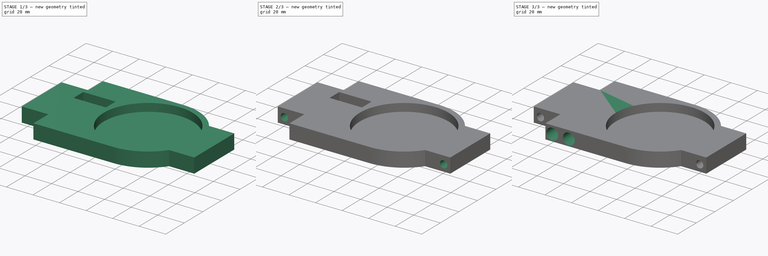
[diagram: build sequence overview — one tinted view per stage of 3, left to right]
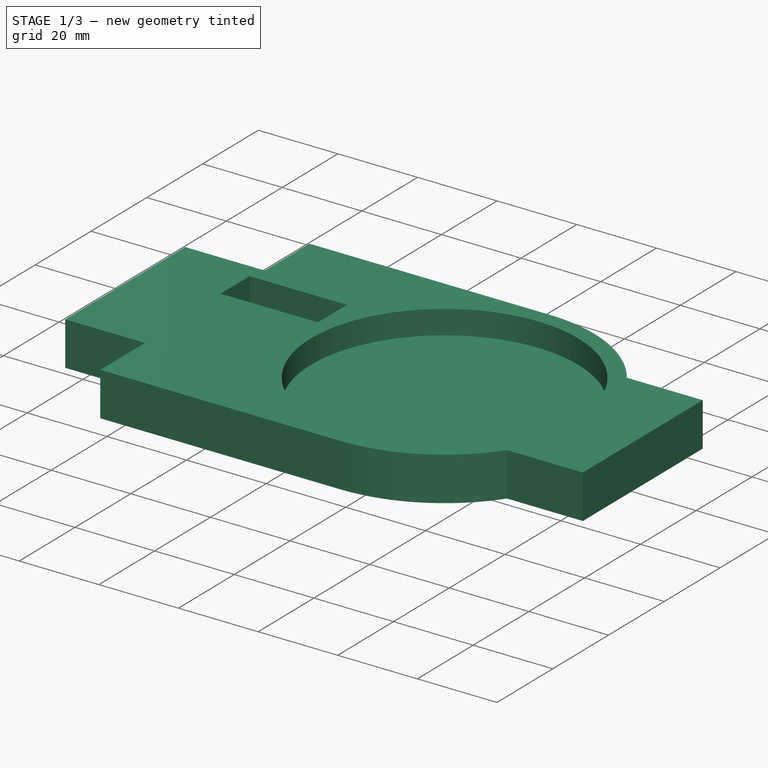
[diagram: stage 1 of 3 — iso view after this stage's code; geometry added in this stage tinted green]
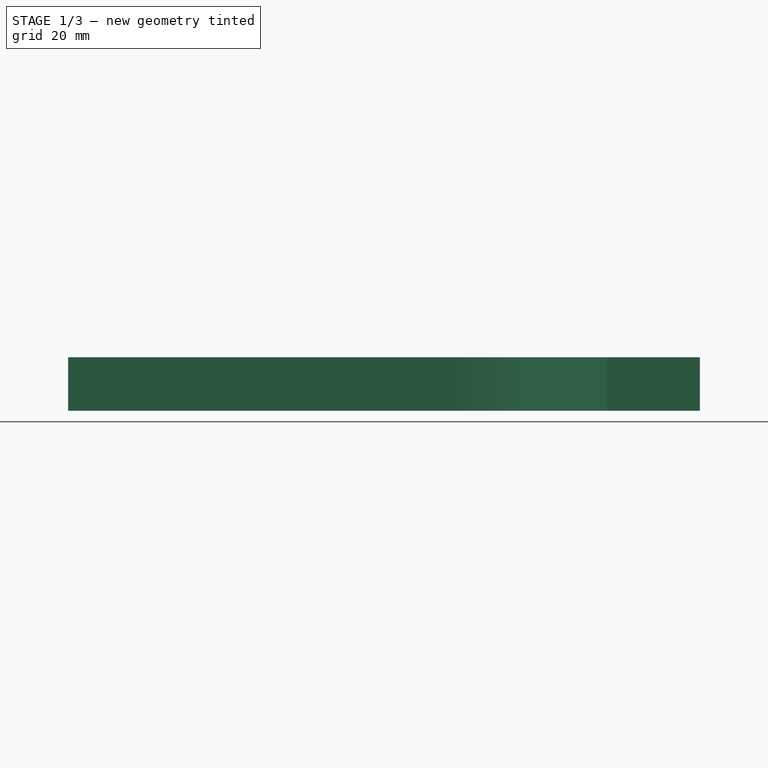
[diagram: stage 1 of 3 — front view after this stage's code; geometry added in this stage tinted green]
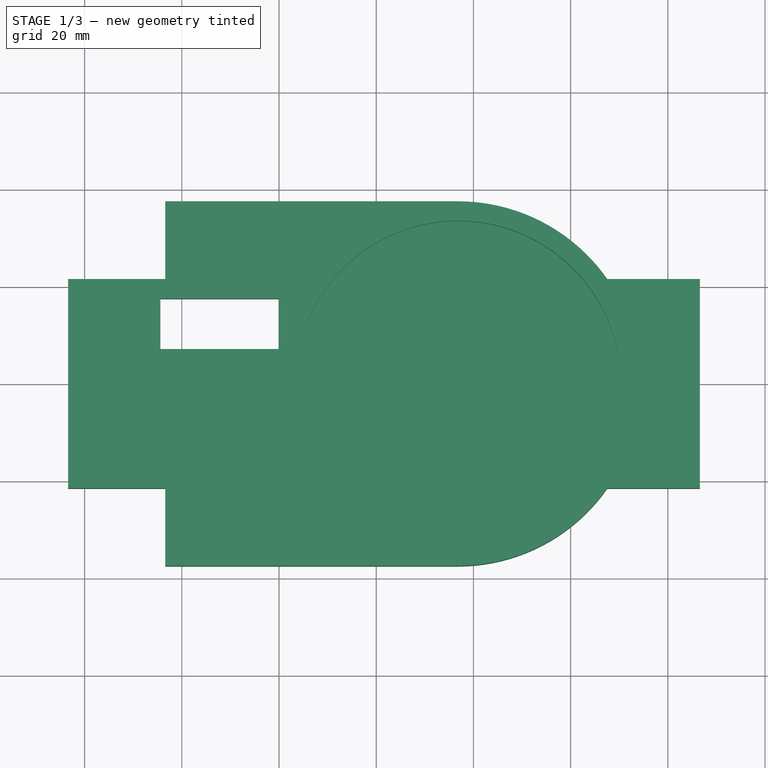
[diagram: stage 1 of 3 — top view after this stage's code; geometry added in this stage tinted green]
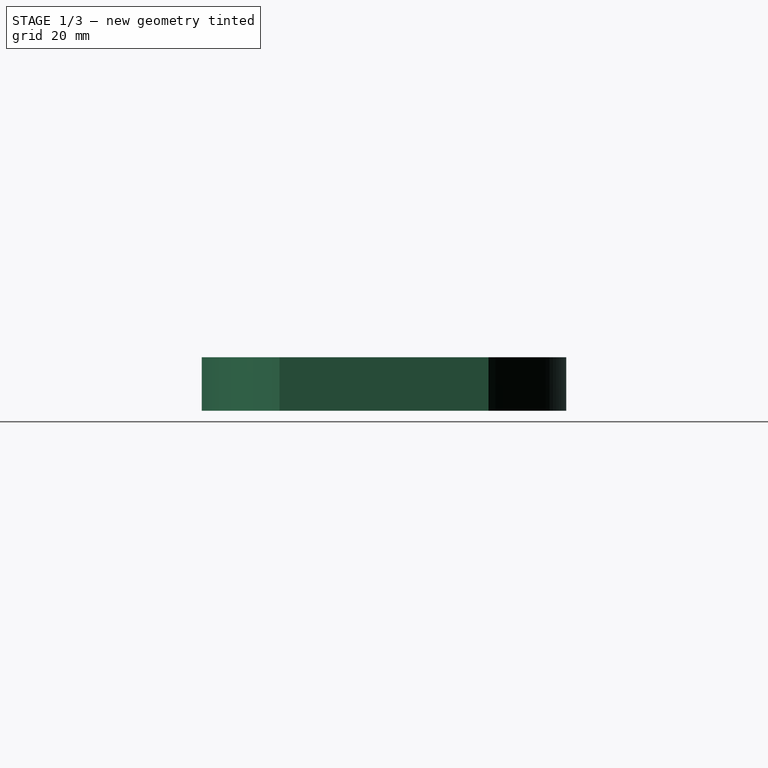
[diagram: stage 1 of 3 — right view after this stage's code; geometry added in this stage tinted green]
FCSTD DOCUMENT  (FreeCAD 1.0R39109 (Git))
Label: Y gantry
License: All rights reserved
LicenseURL: http://en.wikipedia.org/wiki/All_rights_reserved
objects: Sketcher::SketchObject×5, PartDesign::Pad×2, PartDesign::Hole×2, PartDesign::Pocket×1, Spreadsheet::Sheet×1, PartDesign::Body×1
note: 26 computed .brp shape members not serialized (recipe doc carries the construction recipe); baked Part::Feature solids carry a one-line shape summary decoded from their .brp

FEATURE [Sketcher::SketchObject] Sketch
  ArcFitTolerance = 0
  AttachmentSupport = -> [XY_Plane]
  FullyConstrained = false
  MakeInternals = false
  MapMode = 5
  expr: Constraints[36] = 24 + 0.4
  expr: Constraints[37] = 10 + 0.4
  sketch-geometry (22):
    g0: LineSegment StartX=-43.4 StartY=21.5 StartZ=0 EndX=-23.4 EndY=21.5 EndZ=0
    g1: LineSegment StartX=86.6 StartY=21.5 StartZ=0 EndX=86.6 EndY=-21.5 EndZ=0
    g2: LineSegment StartX=86.6 StartY=-21.5 StartZ=0 EndX=67.5463 EndY=-21.5 EndZ=0
    g3: LineSegment StartX=-43.4 StartY=-21.5 StartZ=0 EndX=-43.4 EndY=21.5 EndZ=0
    g4: LineSegment StartX=-23.4 StartY=37.5 StartZ=0 EndX=36.8217 EndY=37.5 EndZ=0
    g5: LineSegment StartX=36.8217 StartY=-37.5 StartZ=0 EndX=-23.4 EndY=-37.5 EndZ=0
    g6: LineSegment StartX=67.5463 StartY=21.5 StartZ=0 EndX=86.6 EndY=21.5 EndZ=0
    g7: LineSegment StartX=-23.4 StartY=-21.5 StartZ=0 EndX=-43.4 EndY=-21.5 EndZ=0
    g8: Circle [constr] CenterX=36.8217 CenterY=0 CenterZ=0 NormalX=0 NormalY=0 NormalZ=1 AngleXU=0 Radius=33.5
    g9: Circle [constr] CenterX=36.8217 CenterY=0 CenterZ=0 NormalX=0 NormalY=0 NormalZ=1 AngleXU=0 Radius=37.5
    g10: Circle [constr] CenterX=36.8217 CenterY=0 CenterZ=0 NormalX=0 NormalY=0 NormalZ=1 AngleXU=0 Radius=45
    g11: LineSegment [constr] StartX=-8.17827 StartY=37.5 StartZ=0 EndX=-8.17827 EndY=-37.5 EndZ=0
    g12: LineSegment [constr] StartX=187.295 StartY=-26.5 StartZ=0 EndX=187.295 EndY=-37.5 EndZ=0
    g13: LineSegment [constr] StartX=187.295 StartY=37.5 StartZ=0 EndX=187.295 EndY=26.5 EndZ=0
    g14: LineSegment StartX=-24.4 StartY=17.5 StartZ=0 EndX=0 EndY=17.5 EndZ=0
    g15: LineSegment StartX=0 StartY=17.5 StartZ=0 EndX=0 EndY=7.1 EndZ=0
    g16: LineSegment StartX=0 StartY=7.1 StartZ=0 EndX=-24.4 EndY=7.1 EndZ=0
    g17: LineSegment StartX=-24.4 StartY=7.1 StartZ=0 EndX=-24.4 EndY=17.5 EndZ=0
    g18: LineSegment StartX=-23.4 StartY=-37.5 StartZ=0 EndX=-23.4 EndY=-21.5 EndZ=0
    g19: ArcOfCircle CenterX=36.8217 CenterY=4e-15 CenterZ=0 NormalX=0 NormalY=0 NormalZ=1 AngleXU=0 Radius=37.5 StartAngle=0.610568 EndAngle=1.5708
    g20: ArcOfCircle CenterX=36.8217 CenterY=-6.2374e-12 CenterZ=0 NormalX=0 NormalY=0 NormalZ=1 AngleXU=0 Radius=37.5 StartAngle=4.71239 EndAngle=5.67262
    g21: LineSegment StartX=-23.4 StartY=21.5 StartZ=0 EndX=-23.4 EndY=37.5 EndZ=0
  constraints (62):
    c: Coincident(g6,g1)
    c: Coincident(g1,g2)
    c: Coincident(g7,g3)
    c: Coincident(g3,g0)
    c: Horizontal(g0)
    c: Horizontal(g2)
    c: Vertical(g1)
    c: Vertical(g3)
    c: Horizontal(g4)
    c: Horizontal(g5)
    c: Tangent(g0,g6)
    c: Tangent(g2,g7)
    c: DistanceY(g5,g4) = 75
    c: DistanceY(g1,g1) = 43
    c: Coincident(g9,g8)
    c: Tangent(g9,g4)
    c: Tangent(g9,g5)
    c: Diameter(g8) = 67
    c: PointOnObject(g6,g9)
    c: Coincident(g10,g8)
    c: Diameter(g10) = 90
    c: Horizontal(g8,g-1)
    c: PointOnObject(g11,g4)
    c: PointOnObject(g11,g5)
    c: Vertical(g11)
    c: Tangent(g11,g10)
    c: Vertical(g12)
    c: Vertical(g13)
    c: Vertical(g13,g12)
    c: Horizontal(g14)
    c: Coincident(g14,g15)
    c: Vertical(g15)
    c: Coincident(g15,g16)
    c: Horizontal(g16)
    c: Coincident(g16,g17)
    c: Vertical(g17)
    c: DistanceX(g16,g16) = 24.4
    c: DistanceY(g15,g15) = 10.4
    c: Coincident(g18,g5)
    c: Coincident(g18,g7)
    c: Vertical(g18)
    c: DistanceX(g-1,g8) = 36.8217  'glassoffset'
    c: DistanceX(g0,g1) = 130  'length'
    c: Equal(g4,g5)
    c: Coincident(g19,g6)
    c: Tangent(g19,g4) = 1.5708
    c: Symmetric(g6,g2,g-1)
    c: Coincident(g20,g2)
    c: Tangent(g20,g5) = 1.5708
    c: Equal(g19,g9)
    c: PointOnObject(g15,g9)
    c: DistanceX(g15,g-1) = 0  'mouning'
    c: Coincident(g21,g0)
    c: Coincident(g21,g4)
    c: Vertical(g21)
    c: PointOnObject(g-1,g15)
    c: Coincident(g14,g17)
    c: Vertical(g0,g7)
    c: Distance(g14,g21) = 1
    c: DistanceY(g14,g11) = 20
    c: DistanceX(g0,g4) = 20
    c: DistanceX(g0,g-1) = 43.4  'lengthA'
FEATURE [PartDesign::Pad] Pad  label="Pad base"
  Direction = (0,0,1)
  Length = 10
  Length2 = 1
  Profile = -> Sketch
  ReferenceAxis = -> Sketch [N_Axis]
  Reversed = true
  Suppressed = false
  Type = 4
FEATURE [Sketcher::SketchObject] Sketch001
  ArcFitTolerance = 0
  AttachmentSupport = -> [XY_Plane]
  FullyConstrained = true
  MakeInternals = false
  MapMode = 5
  expr: Constraints[4] = Sketch.Constraints.glassoffset
  sketch-geometry (2):
    g0: Circle [constr] CenterX=36.8217 CenterY=0 CenterZ=0 NormalX=0 NormalY=0 NormalZ=1 AngleXU=0 Radius=17.5
    g1: Circle CenterX=36.8217 CenterY=0 CenterZ=0 NormalX=0 NormalY=0 NormalZ=1 AngleXU=0 Radius=33.5
  constraints (5):
    c: PointOnObject(g0,g-1)
    c: Coincident(g1,g0)
    c: Diameter(g1) = 67
    c: Tangent(g0,g-3)
    c: DistanceX(g-1,g0) = 36.8217
FEATURE [PartDesign::Pocket] Pocket  label="Pocket glass"
  BaseFeature = -> Pad
  Direction = (0,0,-1)
  Length = 5
  Length2 = 100
  Profile = -> Sketch001
  ReferenceAxis = -> Sketch001 [N_Axis]
  Suppressed = false
  Type = 4
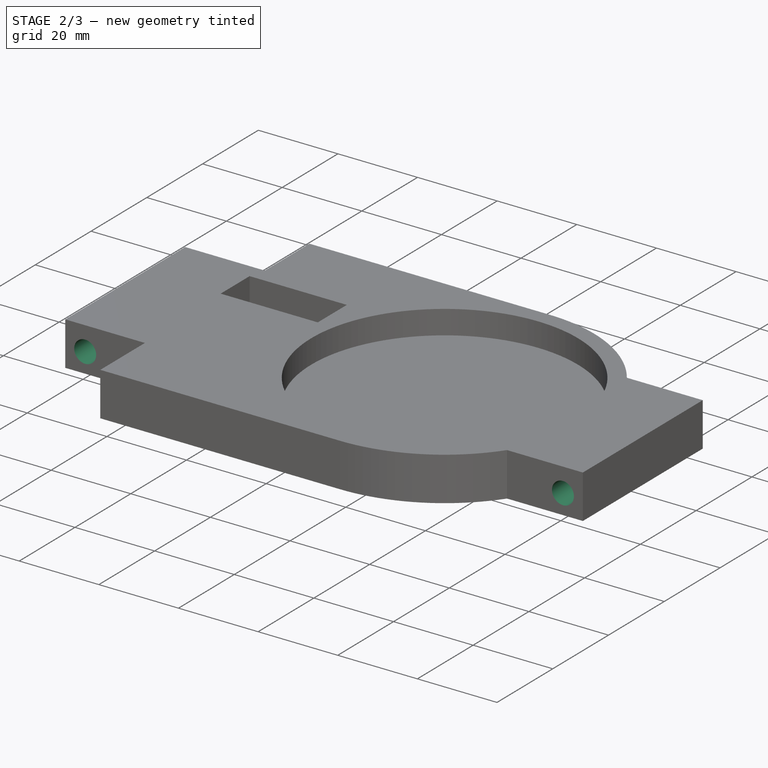
[diagram: stage 2 of 3 — iso view after this stage's code; geometry added in this stage tinted green]
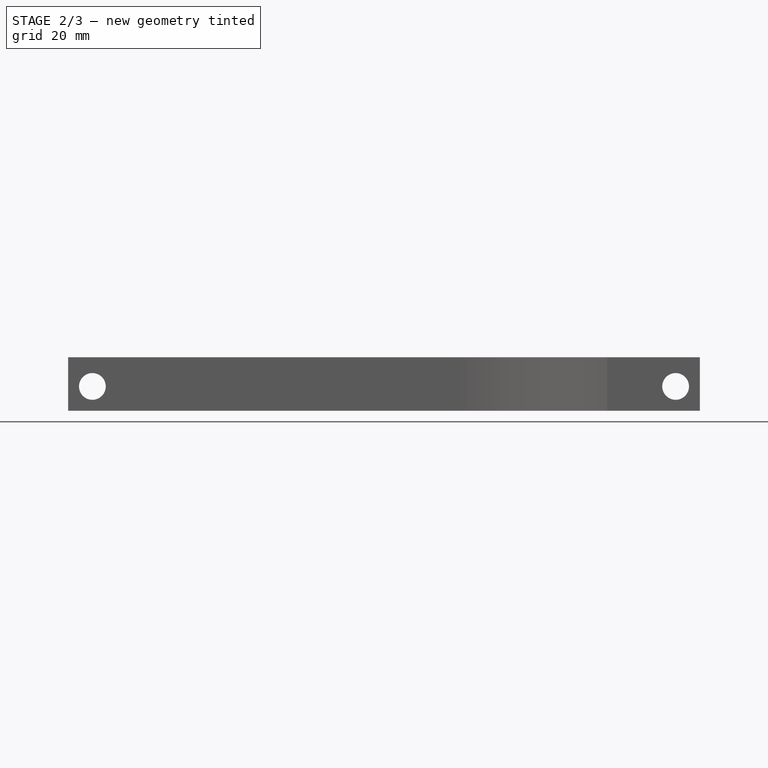
[diagram: stage 2 of 3 — front view after this stage's code; geometry added in this stage tinted green]
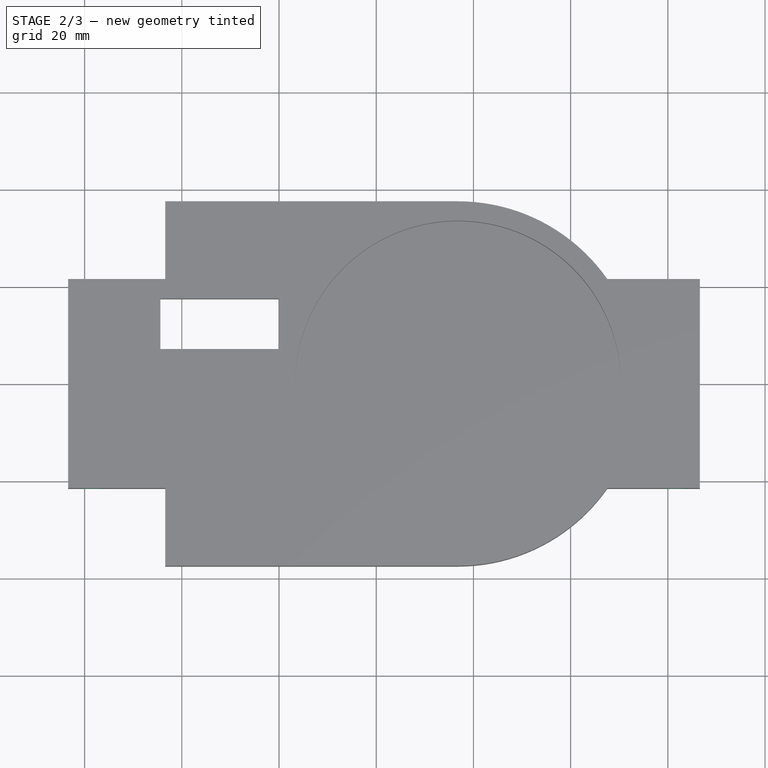
[diagram: stage 2 of 3 — top view after this stage's code; geometry added in this stage tinted green]
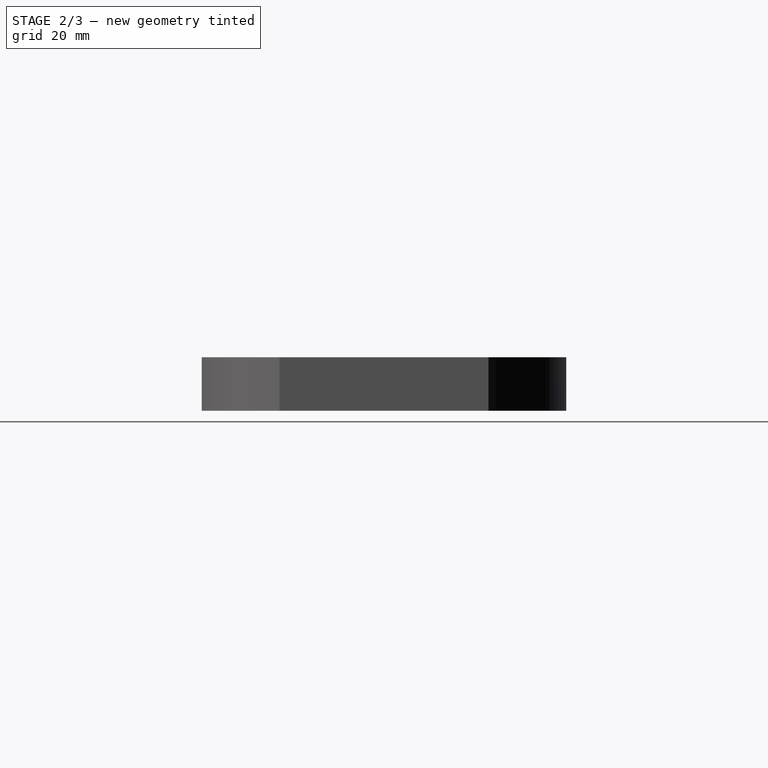
[diagram: stage 2 of 3 — right view after this stage's code; geometry added in this stage tinted green]
FEATURE [Sketcher::SketchObject] Sketch002
  ArcFitTolerance = 0
  AttachmentOffset = pos=(0,0,35) rot=(0,0,1;0rad)
  AttachmentSupport = -> [XZ_Plane]
  FullyConstrained = false
  MakeInternals = false
  MapMode = 5
  Placement = pos=(0,-35,7.8e-15) rot=(1,0,0;1.5708rad)
  expr: Constraints[10] = Sketch.Constraints.length
  expr: Constraints[9] = Sketch.Constraints.lengthA
  sketch-geometry (5):
    g0: Circle CenterX=-38.4 CenterY=-5 CenterZ=0 NormalX=0 NormalY=0 NormalZ=1 AngleXU=0 Radius=2.75
    g1: Circle CenterX=81.6 CenterY=-5 CenterZ=0 NormalX=0 NormalY=0 NormalZ=1 AngleXU=0 Radius=2.75
    g2: LineSegment [constr] StartX=-38.4 StartY=-5 StartZ=0 EndX=81.6 EndY=-5 EndZ=0
    g3: LineSegment [constr] StartX=-43.4 StartY=0 StartZ=0 EndX=-43.4 EndY=-28.6768 EndZ=0
    g4: LineSegment [constr] StartX=86.6 StartY=0 StartZ=0 EndX=86.6 EndY=-29.697 EndZ=0
  constraints (13):
    c: Coincident(g2,g0)
    c: Coincident(g2,g1)
    c: Horizontal(g2)
    c: DistanceY(g0,g-1) = 5
    c: Equal(g0,g1)
    c: PointOnObject(g3,g-1)
    c: Vertical(g3)
    c: PointOnObject(g4,g-1)
    c: Vertical(g4)
    c: DistanceX(g3,g-1) = 43.4
    c: Distance(g3,g4) = 130
    c: Distance(g0,g3) = 5
    c: DistanceX(g1,g4) = 5
FEATURE [PartDesign::Hole] Hole  label="Hole wheels"
  BaseFeature = -> Pocket
  CustomThreadClearance = 0
  Depth = 25
  DepthType = 1
  Diameter = 5.5
  DrillForDepth = false
  DrillPoint = 1
  DrillPointAngle = 118
  HoleCutCountersinkAngle = 90
  HoleCutCustomValues = false
  HoleCutDepth = 0
  HoleCutDiameter = 6.1
  HoleCutType = 0
  ModelThread = false
  Profile = -> Sketch002
  Suppressed = false
  Tapered = false
  TaperedAngle = 90
  ThreadClass = 0
  ThreadDepth = 23.5
  ThreadDepthType = 0
  ThreadDirection = 0
  ThreadFit = 0
  ThreadSize = 0
  ThreadType = 0
  Threaded = false
  UseCustomThreadClearance = false
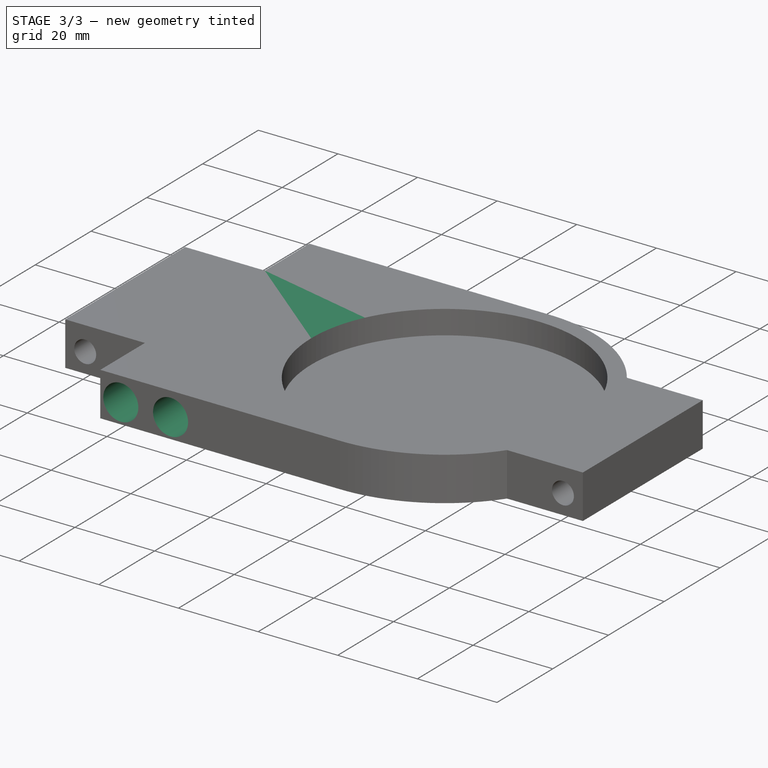
[diagram: stage 3 of 3 — iso view after this stage's code; geometry added in this stage tinted green]
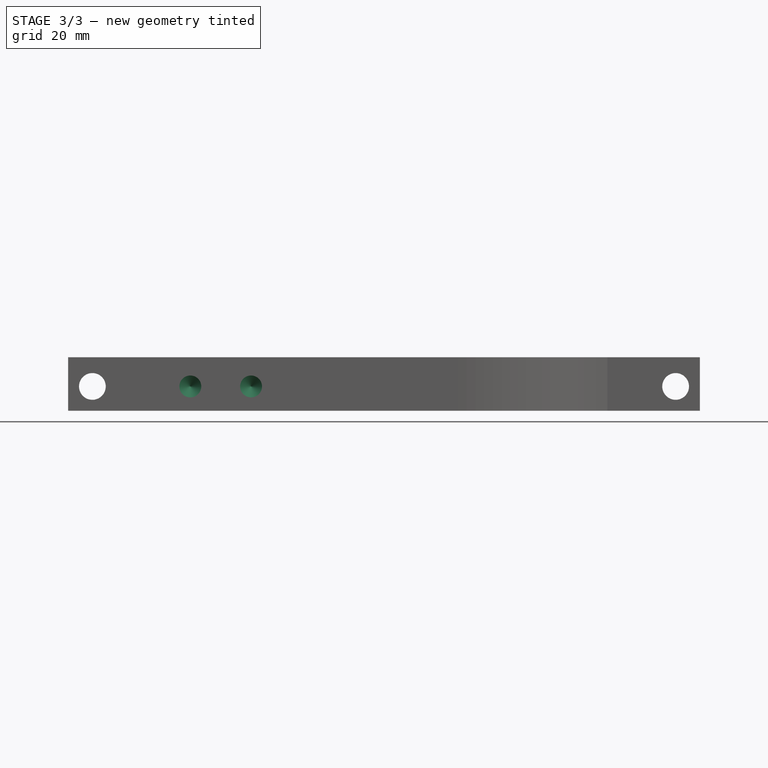
[diagram: stage 3 of 3 — front view after this stage's code; geometry added in this stage tinted green]
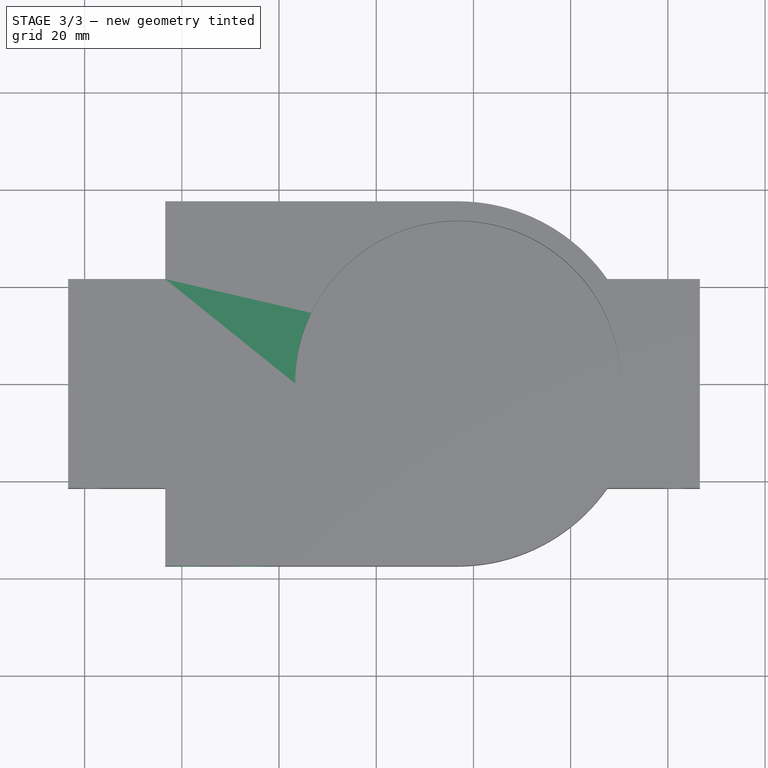
[diagram: stage 3 of 3 — top view after this stage's code; geometry added in this stage tinted green]
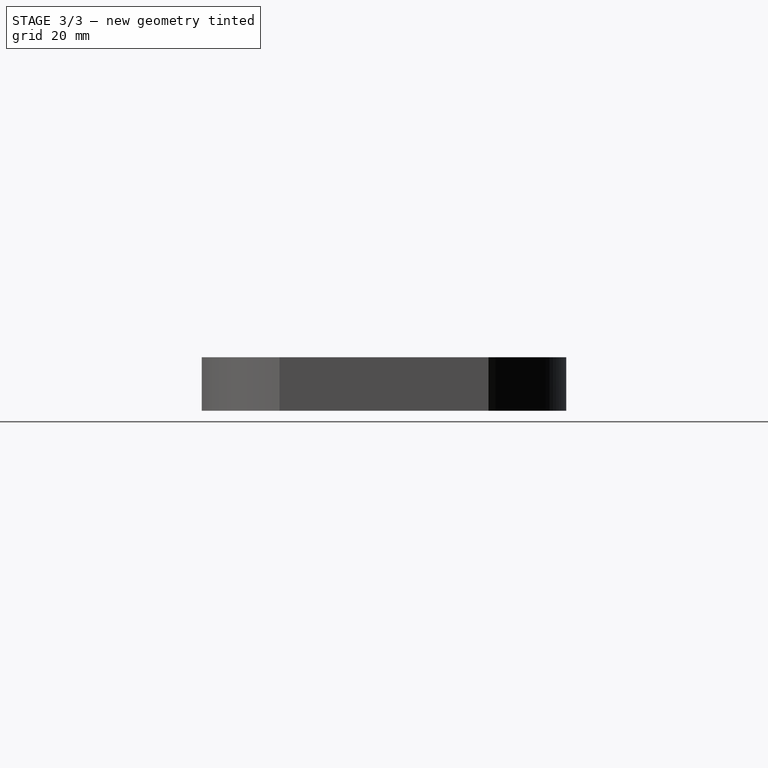
[diagram: stage 3 of 3 — right view after this stage's code; geometry added in this stage tinted green]
FEATURE [Sketcher::SketchObject] Sketch005
  ArcFitTolerance = 0
  AttachmentOffset = pos=(0,0,37.5) rot=(0,0,1;0rad)
  AttachmentSupport = -> [XZ_Plane]
  FullyConstrained = false
  MakeInternals = false
  MapMode = 5
  Placement = pos=(0,-37.5,8.3e-15) rot=(1,0,0;1.5708rad)
  sketch-geometry (5):
    g0: LineSegment [constr] StartX=-18.25 StartY=-5 StartZ=0 EndX=-5.75 EndY=-5 EndZ=0
    g1: Circle CenterX=-18.25 CenterY=-5 CenterZ=0 NormalX=0 NormalY=0 NormalZ=1 AngleXU=0 Radius=2.88795
    g2: Circle CenterX=-5.75 CenterY=-5 CenterZ=0 NormalX=0 NormalY=0 NormalZ=1 AngleXU=0 Radius=2.88795
    g3: LineSegment [constr] StartX=-18.25 StartY=-5 StartZ=0 EndX=-24 EndY=0 EndZ=0
    g4: LineSegment [constr] StartX=-5.75 StartY=-5 StartZ=0 EndX=0 EndY=0 EndZ=0
  constraints (13):
    c: DistanceX(g0,g0) = 12.5
    c: Horizontal(g0)
    c: Coincident(g1,g0)
    c: Coincident(g2,g0)
    c: Equal(g2,g1)
    c: DistanceY(g0,g-1) = 5
    c: Coincident(g3,g0)
    c: PointOnObject(g3,g-1)
    c: Coincident(g4,g0)
    c: PointOnObject(g4,g-1)
    c: Equal(g3,g4)
    c: DistanceX(g3,g4) = 24
    c: PointOnObject(g4,g-2)
FEATURE [PartDesign::Hole] Hole001  label="Hole guide mount"
  BaseFeature = -> Hole
  CustomThreadClearance = 0
  Depth = 70
  DepthType = 0
  Diameter = 4.5
  DrillForDepth = false
  DrillPoint = 1
  DrillPointAngle = 118
  HoleCutCountersinkAngle = 90
  HoleCutCustomValues = false
  HoleCutDepth = 50
  HoleCutDiameter = 8.8
  HoleCutType = 1
  ModelThread = false
  Profile = -> Sketch005
  Suppressed = false
  Tapered = false
  TaperedAngle = 90
  ThreadClass = 0
  ThreadDepth = 70
  ThreadDepthType = 0
  ThreadDirection = 0
  ThreadFit = 0
  ThreadSize = 0
  ThreadType = 0
  Threaded = false
  UseCustomThreadClearance = false
FEATURE [Spreadsheet::Sheet] Spreadsheet
  cells = A1='MotorHeight; B1(MotorHeight)=80; A2='StepperHole; B2(StepperHole)=25; A3='HoleM3; B3(HoleM3)=3.75; C3(HoleM3Counter)=5.75
FEATURE [Sketcher::SketchObject] Sketch006
  ArcFitTolerance = 1e-06
  AttachmentOffset = pos=(0,0,0.5) rot=(0,0,1;0rad)
  AttachmentSupport = -> [XY_Plane]
  FullyConstrained = false
  MakeInternals = false
  MapMode = 5
  Placement = pos=(0,0,0.5) rot=(0,0,1;0rad)
  sketch-geometry (4):
    g0: LineSegment StartX=-26.7777 StartY=19.0279 StartZ=0 EndX=-26.7777 EndY=4.46939 EndZ=0
    g1: LineSegment StartX=-26.7777 StartY=4.46939 StartZ=0 EndX=0.787995 EndY=4.46939 EndZ=0
    g2: LineSegment StartX=0.787995 StartY=4.46939 StartZ=0 EndX=0.787995 EndY=19.0279 EndZ=0
    g3: LineSegment StartX=0.787995 StartY=19.0279 StartZ=0 EndX=-26.7777 EndY=19.0279 EndZ=0
  constraints (8):
    c: Coincident(g0,g1)
    c: Coincident(g1,g2)
    c: Coincident(g2,g3)
    c: Coincident(g3,g0)
    c: Vertical(g0)
    c: Vertical(g2)
    c: Horizontal(g1)
    c: Horizontal(g3)
FEATURE [PartDesign::Pad] Pad001
  BaseFeature = -> Hole001
  Direction = (0,0,1)
  Length = 0.5
  Length2 = 10
  Profile = -> Sketch006
  ReferenceAxis = -> Sketch006 [N_Axis]
  Refine = true
  Suppressed = false
  Type = 0
FEATURE [PartDesign::Body] Body
  AllowCompound = false
  Group = -> [Sketch,Pad,Sketch001,Pocket,Sketch002,Hole,Sketch005,Hole001,Sketch006,Pad001]
  Origin = -> Origin
  Tip = -> Pad001
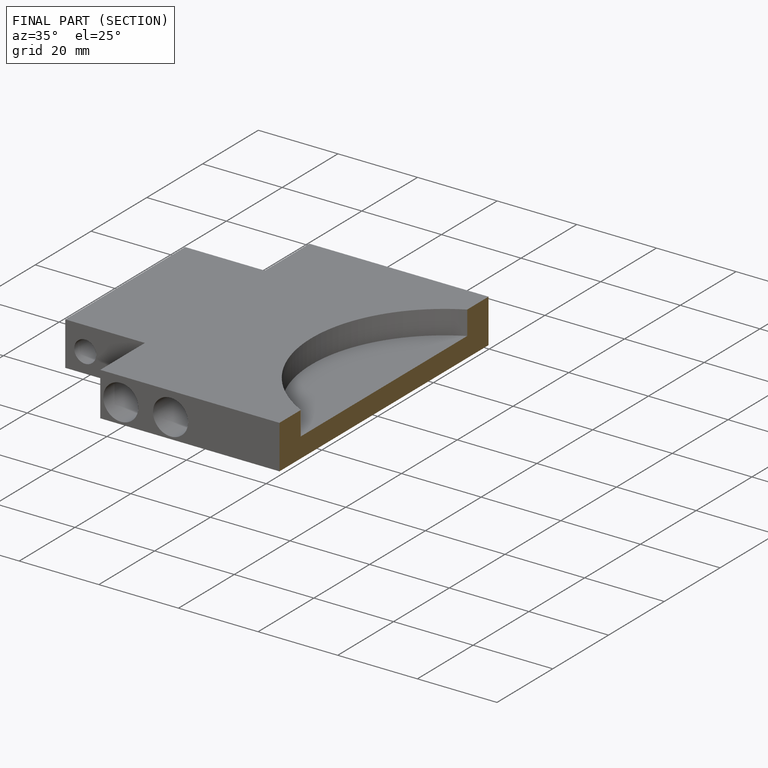
[diagram: finished part — half-section view (interior)]
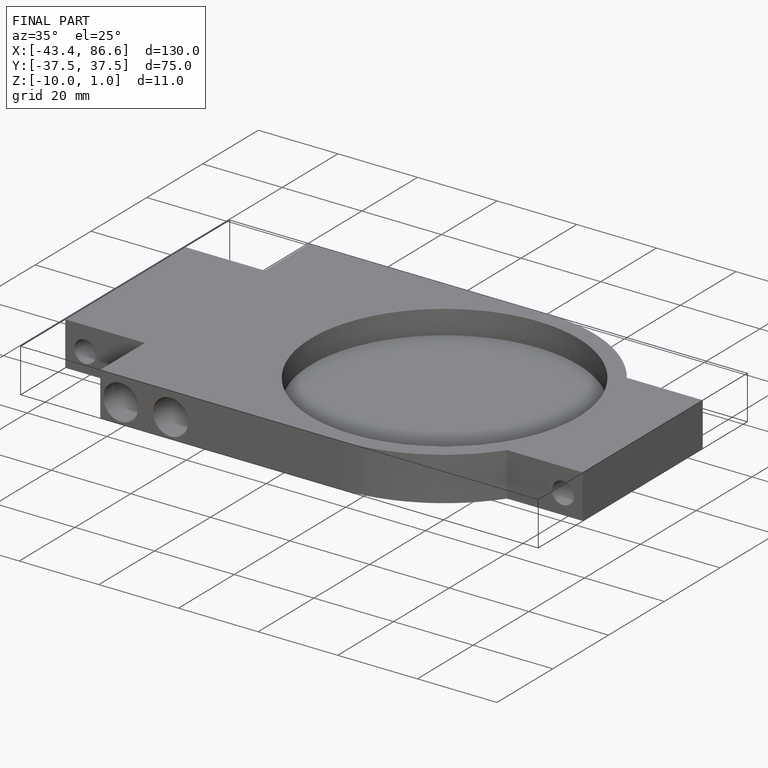
[diagram: finished part — iso view with bounding-box wireframe]
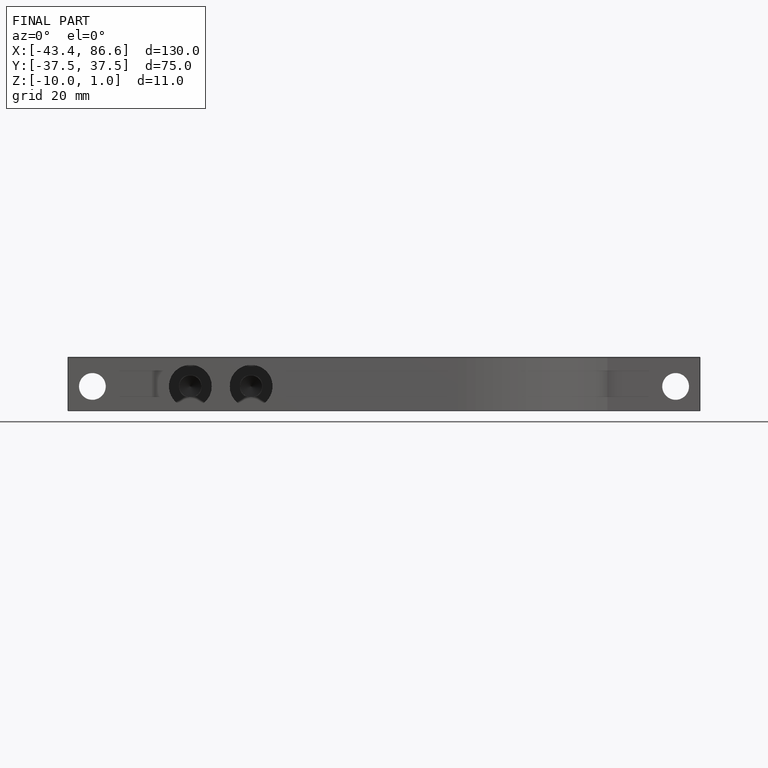
[diagram: finished part — front view with bounding-box wireframe]
